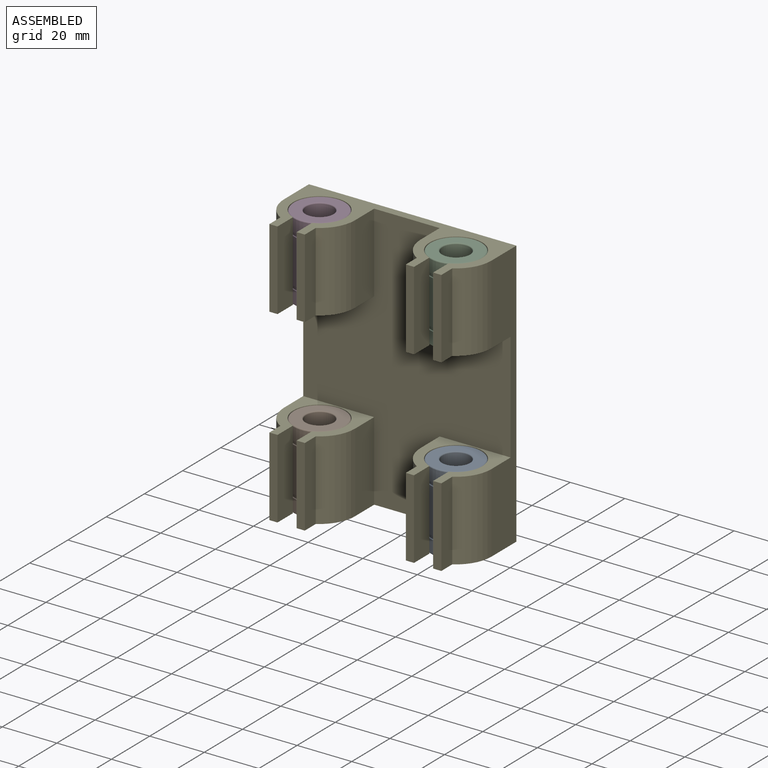
[diagram: assembled view]
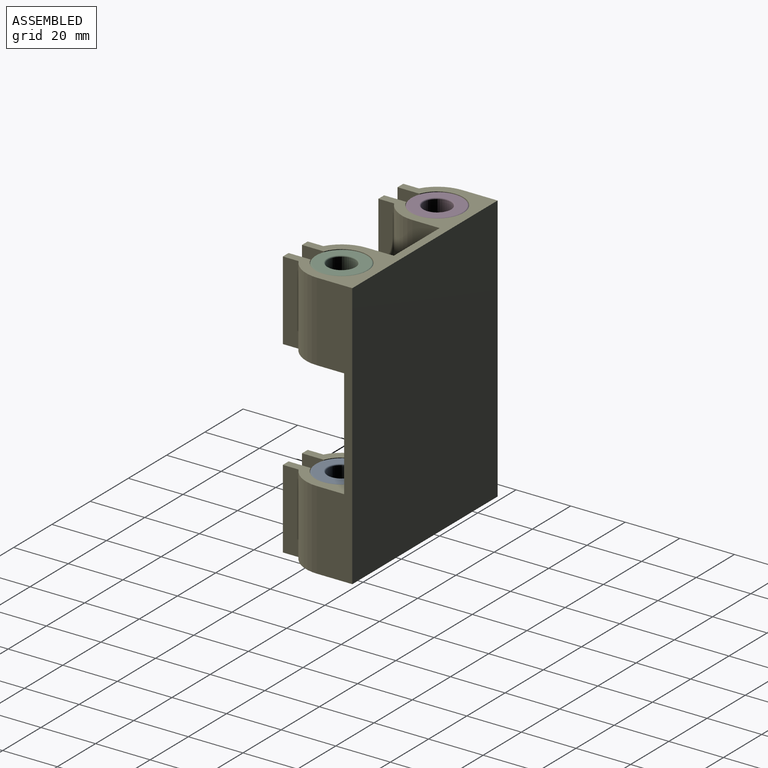
[diagram: assembled view, second angle]
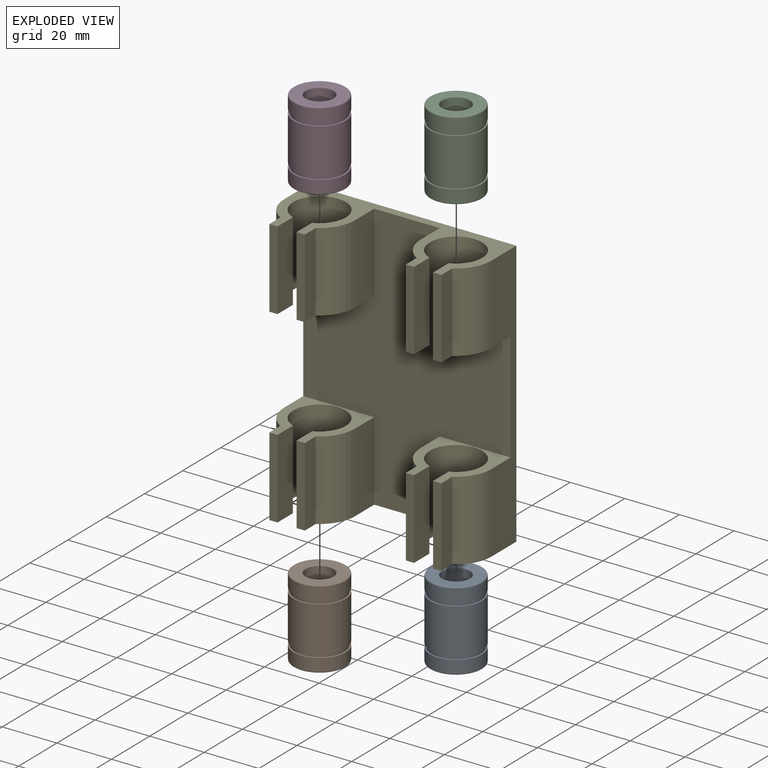
[diagram: exploded view]
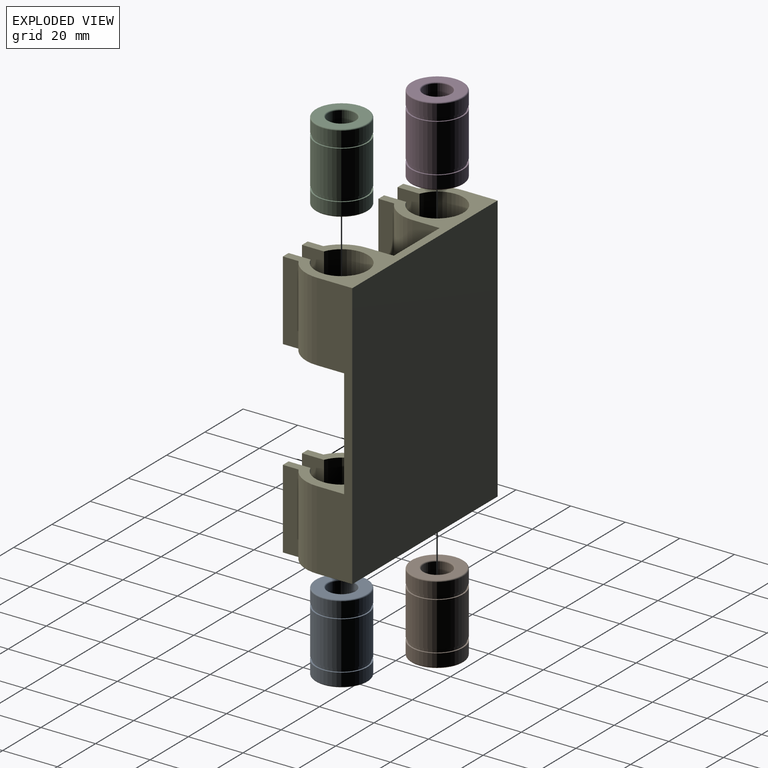
[diagram: exploded view, second angle]
ASSEMBLY  parts=5 mates=4
PART A: 16 faces, bbox 20.6x20.6x29 mm
  f0: cylinder r=9.5mm len=19mm, axis (0,0,-1), area 274.6mm2, adj f9,f13
  f1: cylinder r=9.5mm len=19mm, axis (0,0,-1), area 978.9mm2, adj f10,f14
  f2: cylinder r=5mm len=28.2mm, axis (0,0,-1), area 885.9mm2, adj f6,f8
  f3: cylinder r=9.5mm len=19mm, axis (0,0,-1), area 274.6mm2, adj f7,f11
  f4: plane 18.2x18.2mm, normal (0,0,1), area 168.5mm2, adj f8,f9
  f5: plane 18.2x18.2mm, normal (0,0,-1), area 168.5mm2, adj f6,f7
  f6: torus R=5.4mm, axis (0,0,1), area 20.3mm2, adj f2,f5
  f7: torus R=9.1mm, axis (0,0,1), area 36.9mm2, adj f3,f5
  f8: torus R=5.4mm, axis (0,0,1), area 20.3mm2, adj f2,f4
  f9: torus R=9.1mm, axis (0,0,1), area 36.9mm2, adj f0,f4
  f10: plane 19x19mm, normal (0,0,-1), area 29.1mm2, adj f1,f12
  f11: plane 19x19mm, normal (0,0,1), area 29.1mm2, adj f3,f12
  f12: cylinder r=9mm len=18mm, axis (0,0,-1), area 73.5mm2, adj f10,f11
  f13: plane 19x19mm, normal (0,0,-1), area 29.1mm2, adj f0,f15
  f14: plane 19x19mm, normal (0,0,1), area 29.1mm2, adj f1,f15
  f15: cylinder r=9mm len=18mm, axis (0,0,-1), area 73.5mm2, adj f13,f14
PART B: same geometry as A
PART C: same geometry as A
PART D: same geometry as A
PART E: 50 faces, bbox 76x98x30 mm
  f0: plane 29x3mm, normal (0,0,-1), area 87mm2, adj f1,f21,f45,f46
  f1: plane 29x5.74mm, normal (1,0,0), area 166.5mm2, adj f0,f2,f45,f46
  f2: cylinder r=13mm len=29mm, axis (0,1,0), area 394.8mm2, adj f1,f3,f45,f46
  f3: plane 29x10mm, normal (1,0,0), area 290mm2, adj f2,f26,f45,f46
  f4: plane 29x10mm, normal (-1,0,0), area 290mm2, adj f5,f26,f45,f48
  f5: cylinder r=13mm len=29mm, axis (0,1,0), area 394.8mm2, adj f4,f6,f45,f48
  f6: plane 29x5.74mm, normal (-1,0,0), area 166.5mm2, adj f5,f7,f45,f48
  f7: plane 29x3mm, normal (0,0,-1), area 87mm2, adj f6,f8,f45,f48
  f8: plane 29x8.06mm, normal (1,0,0), area 233.8mm2, adj f7,f9,f45,f48
  f9: cylinder r=9.6mm len=29mm, axis (0,1,0), area 1541.4mm2, adj f8,f10,f45,f48
  f10: plane 29x8.06mm, normal (-1,0,0), area 233.8mm2, adj f9,f11,f45,f48
  f11: plane 29x3mm, normal (0,0,-1), area 87mm2, adj f10,f12,f45,f48
  f12: plane 29x5.74mm, normal (1,0,0), area 166.5mm2, adj f11,f13,f45,f48
  f13: cylinder r=13mm len=29mm, axis (0,1,0), area 394.8mm2, adj f12,f14,f45,f48
  f14: plane 98x13mm, normal (1,0,0), area 874mm2, adj f13,f26,f36,f37,f44,f45,f48,f49
  f15: plane 98x13mm, normal (-1,0,0), area 874mm2, adj f16,f26,f37,f38,f44,f45,f46,f47
  f16: cylinder r=13mm len=29mm, axis (0,1,0), area 394.8mm2, adj f15,f17,f45,f46
  f17: plane 29x5.74mm, normal (-1,0,0), area 166.5mm2, adj f16,f18,f45,f46
  f18: plane 29x3mm, normal (0,0,-1), area 87mm2, adj f17,f19,f45,f46
  f19: plane 29x8.06mm, normal (1,0,0), area 233.8mm2, adj f18,f20,f45,f46
  f20: cylinder r=9.6mm len=29mm, axis (0,1,0), area 1541.4mm2, adj f19,f21,f45,f46
  f21: plane 29x8.06mm, normal (-1,0,0), area 233.8mm2, adj f0,f20,f45,f46
  f22: plane 29x3mm, normal (0,0,-1), area 87mm2, adj f23,f43,f44,f47
  f23: plane 29x5.74mm, normal (1,0,0), area 166.5mm2, adj f22,f24,f44,f47
  f24: cylinder r=13mm len=29mm, axis (0,1,0), area 394.8mm2, adj f23,f25,f44,f47
  f25: plane 29x10mm, normal (1,0,0), area 290mm2, adj f24,f26,f44,f47
  f26: plane 98x76mm, normal (0,0,-1), area 4432mm2, adj f3,f4,f14,f15,f25,f27,f44,f45
  f27: plane 29x10mm, normal (-1,0,0), area 290mm2, adj f26,f28,f44,f49
  f28: cylinder r=13mm len=29mm, axis (0,1,0), area 394.8mm2, adj f27,f29,f44,f49
  f29: plane 29x5.74mm, normal (-1,0,0), area 166.5mm2, adj f28,f30,f44,f49
  f30: plane 29x3mm, normal (0,0,-1), area 87mm2, adj f29,f31,f44,f49
  f31: plane 29x8.06mm, normal (1,0,0), area 233.8mm2, adj f30,f32,f44,f49
  f32: cylinder r=9.6mm len=29mm, axis (0,1,0), area 1541.4mm2, adj f31,f33,f44,f49
  f33: plane 29x8.06mm, normal (-1,0,0), area 233.8mm2, adj f32,f34,f44,f49
  f34: plane 29x3mm, normal (0,0,-1), area 87mm2, adj f33,f35,f44,f49
  f35: plane 29x5.74mm, normal (1,0,0), area 166.5mm2, adj f34,f36,f44,f49
  f36: cylinder r=13mm len=29mm, axis (0,1,0), area 394.8mm2, adj f14,f35,f44,f49
  f37: plane 98x76mm, normal (0,0,1), area 7448mm2, adj f14,f15,f44,f45
  f38: cylinder r=13mm len=29mm, axis (0,1,0), area 394.8mm2, adj f15,f39,f44,f47
  f39: plane 29x5.74mm, normal (-1,0,0), area 166.5mm2, adj f38,f40,f44,f47
  f40: plane 29x3mm, normal (0,0,-1), area 87mm2, adj f39,f41,f44,f47
  f41: plane 29x8.06mm, normal (1,0,0), area 233.8mm2, adj f40,f42,f44,f47
  f42: cylinder r=9.6mm len=29mm, axis (0,1,0), area 1541.4mm2, adj f41,f43,f44,f47
  f43: plane 29x8.06mm, normal (-1,0,0), area 233.8mm2, adj f22,f42,f44,f47
  f44: plane 76x30mm, normal (0,-1,0), area 711.9mm2, adj f14,f15,f22,f23,f24,f25,f26,f27
  f45: plane 76x30mm, normal (0,1,0), area 711.9mm2, adj f0,f1,f2,f3,f4,f5,f6,f7
  f46: plane 27x26mm, normal (0,-1,0), area 241.9mm2, adj f0,f1,f2,f3,f15,f16,f17,f18
  f47: plane 27x26mm, normal (0,1,0), area 241.9mm2, adj f15,f22,f23,f24,f25,f26,f38,f39
  f48: plane 27x26mm, normal (0,-1,0), area 241.9mm2, adj f4,f5,f6,f7,f8,f9,f10,f11
  f49: plane 27x26mm, normal (0,1,0), area 241.9mm2, adj f14,f26,f27,f28,f29,f30,f31,f32
PLACE A t=(23.02,50.29,-49.23)mm
PLACE B t=(-26.98,50.29,-49.23)mm
PLACE C t=(23.02,50.29,19.77)mm
PLACE D t=(-26.98,50.29,19.77)mm
PLACE E rot(axis=(-1,0,0),90deg) t=(-39.98,63.29,-49.23)mm
MATE fastened E.f5 <-> A.f0  axis (0,0,-1) through (23.02,50.29,-49.23)mm
MATE fastened D.f0 <-> E.f2  axis (0,0,1) through (-26.98,50.29,48.77)mm
MATE fastened E.f5 <-> C.f2  axis (0,0,1) through (23.02,50.29,48.77)mm
MATE fastened E.f2 <-> B.f0  axis (0,0,-1) through (-26.98,50.29,-49.23)mm
